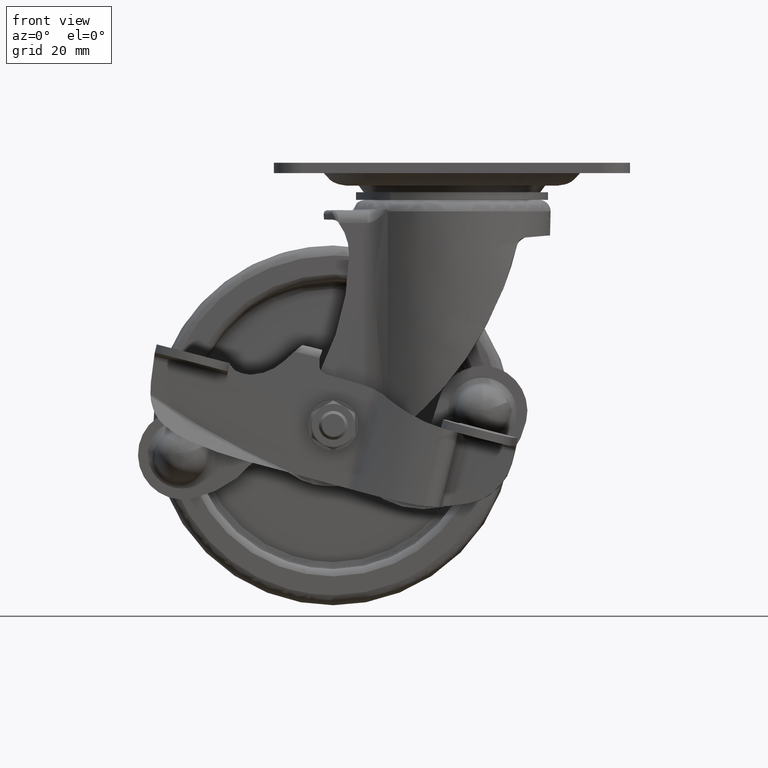
[diagram: clean part render]
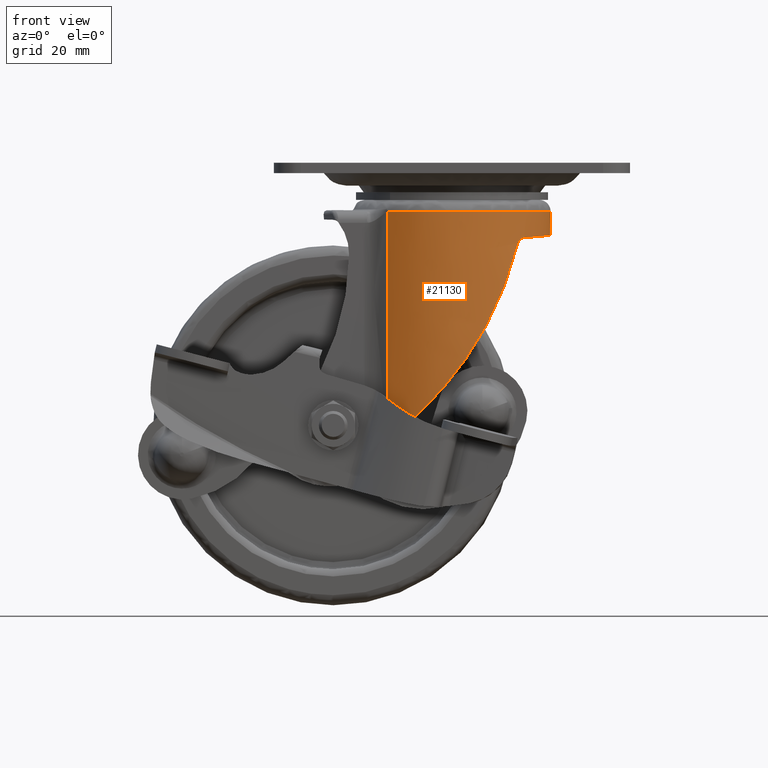
[diagram: same view with one face highlighted and labeled with its STEP entity id]
A machine part, front view. The second image highlights one B-rep face of the part: STEP entity #21130.
In plain terms, the highlighted face is a freeform B-spline surface patch.
Its self-contained STEP definition (entity closure, byte-faithful):
#17710=CARTESIAN_POINT('',(-17.809410793729349,20.855587073496551,-13.514989000000019));
#17711=VERTEX_POINT('',#17710);
#17712=CARTESIAN_POINT('',(2.256068144123487,27.332046786310588,-13.514988997901430));
#17713=VERTEX_POINT('',#17712);
#17714=CARTESIAN_POINT('',(-17.809410793729349,20.855587073496551,-13.514989000000019));
#17715=CARTESIAN_POINT('',(-16.181062514151090,22.246762484714420,-13.514989000000160));
#17716=CARTESIAN_POINT('',(-13.067750404773390,24.328609112778590,-13.514988999886590));
#17717=CARTESIAN_POINT('',(-8.141863590517751,26.331576506660902,-13.514988999452740));
#17718=CARTESIAN_POINT('',(-3.166226682089326,27.410586725977559,-13.514988998828651));
#17719=CARTESIAN_POINT('',(0.346340687700639,27.489996866062761,-13.514988998253600));
#17720=CARTESIAN_POINT('',(2.256068144123487,27.332046786310588,-13.514988997901430));
#17721=B_SPLINE_CURVE_WITH_KNOTS('',3,(#17714,#17715,#17716,#17717,#17718,#17719,#17720),.UNSPECIFIED.,.F.,.U.,(4,1,1,1,4),(0.000000041187111,6.425009773593368,11.159193622315870,15.893420190783679,21.642109627201950),.UNSPECIFIED.);
#17722=EDGE_CURVE('',#17711,#17713,#17721,.T.);
#17773=CARTESIAN_POINT('',(-17.809410793725050,-20.855587073500249,-13.514989000000019));
#17774=VERTEX_POINT('',#17773);
#17802=CARTESIAN_POINT('',(27.416338891094501,-0.689192867533526,-13.514988997873211));
#17803=VERTEX_POINT('',#17802);
#17804=CARTESIAN_POINT('',(27.416338891094501,-0.689192867533526,-13.514988997873211));
#17805=CARTESIAN_POINT('',(27.362258257663221,-2.860237573532439,-13.514988998045020));
#17806=CARTESIAN_POINT('',(26.803832049654488,-6.708013903065655,-13.514988998355120));
#17807=CARTESIAN_POINT('',(24.978329027474562,-11.630994355732810,-13.514988998764910));
#17808=CARTESIAN_POINT('',(22.483732541432332,-15.965343627836550,-13.514988999136330));
#17809=CARTESIAN_POINT('',(19.086485311150639,-19.977686969704401,-13.514988999493090));
#17810=CARTESIAN_POINT('',(14.987450509932501,-23.139090205523470,-13.514988999790880));
#17811=CARTESIAN_POINT('',(11.127261970618621,-25.153451567642769,-13.514988999995589));
#17812=CARTESIAN_POINT('',(6.962419208093797,-26.669707520689290,-13.514989000164530));
#17813=CARTESIAN_POINT('',(2.263048676686910,-27.512634308732270,-13.514989000286940));
#17814=CARTESIAN_POINT('',(-2.419263276025673,-27.416394096781339,-13.514989000334660));
#17815=CARTESIAN_POINT('',(-6.392420884691139,-26.752034314798252,-13.514989000329891));
#17816=CARTESIAN_POINT('',(-10.402376109485440,-25.522217369357861,-13.514989000279851));
#17817=CARTESIAN_POINT('',(-14.366560107942590,-23.512353567095349,-13.514989000168789));
#17818=CARTESIAN_POINT('',(-16.830772490804279,-21.691320733302181,-13.514989000054280));
#17819=CARTESIAN_POINT('',(-17.809410793725050,-20.855587073500249,-13.514989000000019));
#17820=B_SPLINE_CURVE_WITH_KNOTS('',3,(#17804,#17805,#17806,#17807,#17808,#17809,#17810,#17811,#17812,#17813,#17814,#17815,#17816,#17817,#17818,#17819),.UNSPECIFIED.,.F.,.U.,(4,1,1,1,1,1,1,1,1,1,1,1,1,4),(0.000000445229588,6.515058542583354,11.582493206983781,15.684651587746540,21.475931842472459,27.267234604979858,31.127851830378599,34.506182734231572,40.538722366357703,45.364821359683702,48.501780482406772,52.603965430931318,57.912564213391143,61.773375144094842),.UNSPECIFIED.);
#17821=EDGE_CURVE('',#17803,#17774,#17820,.T.);
#17917=CARTESIAN_POINT('',(2.256068144123487,27.332046786310588,-13.514988997901430));
#17918=CARTESIAN_POINT('',(4.087544215698467,27.181162879904580,-13.514988998255429));
#17919=CARTESIAN_POINT('',(6.865087686045921,26.667003596386149,-13.514988998738570));
#17920=CARTESIAN_POINT('',(10.850017832122990,25.272678393950670,-13.514988999307850));
#17921=CARTESIAN_POINT('',(14.238958491251600,23.565490989685010,-13.514988999693729));
#17922=CARTESIAN_POINT('',(17.855765918257340,20.981331613136920,-13.514988999961860));
#17923=CARTESIAN_POINT('',(21.077112709466022,17.756683923506241,-13.514989000026681));
#17924=CARTESIAN_POINT('',(23.387303699644232,14.474933294839509,-13.514988999890450));
#17925=CARTESIAN_POINT('',(25.197779513665651,11.025245399250389,-13.514988999618231));
#17926=CARTESIAN_POINT('',(26.962091419476550,6.242130181663877,-13.514988999084990));
#17927=CARTESIAN_POINT('',(27.485412729764839,2.012528817371611,-13.514988998396960));
#17928=CARTESIAN_POINT('',(27.416338891094501,-0.689192867533526,-13.514988997873211));
#17929=B_SPLINE_CURVE_WITH_KNOTS('',3,(#17917,#17918,#17919,#17920,#17921,#17922,#17923,#17924,#17925,#17926,#17927,#17928),.UNSPECIFIED.,.F.,.U.,(4,1,1,1,1,1,1,1,1,4),(0.000000142469268,5.512993311559292,8.431695133595873,12.647592320291430,16.863479319849869,21.727786342800648,26.268030616539889,28.862399098041521,33.402565072748963,41.509976035594512),.UNSPECIFIED.);
#17930=EDGE_CURVE('',#17713,#17803,#17929,.T.);
#19168=CARTESIAN_POINT('',(-17.846202660859849,20.824112840347350,-13.547320495268080));
#19169=VERTEX_POINT('',#19168);
#19170=CARTESIAN_POINT('',(-17.846202660859849,20.824112840347350,-13.547320495268080));
#19171=CARTESIAN_POINT('',(-17.809410793729349,20.855587073496551,-13.514989000000019));
#19172=QUASI_UNIFORM_CURVE('',1,(#19170,#19171),.UNSPECIFIED.,.F.,.U.);
#19173=EDGE_CURVE('',#19169,#17711,#19172,.T.);
#19603=CARTESIAN_POINT('',(-17.846202660859849,-20.824112840347350,-13.547320495268080));
#19604=VERTEX_POINT('',#19603);
#19642=CARTESIAN_POINT('',(-17.809410793725050,-20.855587073500249,-13.514989000000019));
#19643=CARTESIAN_POINT('',(-17.846202660859849,-20.824112840347350,-13.547320495268080));
#19644=QUASI_UNIFORM_CURVE('',1,(#19642,#19643),.UNSPECIFIED.,.F.,.U.);
#19645=EDGE_CURVE('',#17774,#19604,#19644,.T.);
#20300=CARTESIAN_POINT('',(-17.846202660859799,20.824112840347350,-76.803480371900108));
#20301=VERTEX_POINT('',#20300);
#20302=CARTESIAN_POINT('',(-17.846202660859799,20.824112840347350,-76.803480371900108));
#20303=CARTESIAN_POINT('',(-17.846202660859849,20.824112840347350,-13.547320495268080));
#20304=QUASI_UNIFORM_CURVE('',1,(#20302,#20303),.UNSPECIFIED.,.F.,.U.);
#20305=EDGE_CURVE('',#20301,#19169,#20304,.T.);
#20332=CARTESIAN_POINT('',(-17.846202660859849,-20.824112840347350,-76.803480371900108));
#20333=VERTEX_POINT('',#20332);
#20334=CARTESIAN_POINT('',(-17.846202660859849,-20.824112840347350,-13.547320495268080));
#20335=CARTESIAN_POINT('',(-17.846202660859849,-20.824112840347350,-76.803480371900108));
#20336=QUASI_UNIFORM_CURVE('',1,(#20334,#20335),.UNSPECIFIED.,.F.,.U.);
#20337=EDGE_CURVE('',#19604,#20333,#20336,.T.);
#20549=CARTESIAN_POINT('',(18.218237527660801,20.499425513553600,-22.550122951543550));
#20550=VERTEX_POINT('',#20549);
#20551=CARTESIAN_POINT('',(-17.846202660859799,20.824112840347350,-76.803480371900108));
#20552=CARTESIAN_POINT('',(-17.499274141282331,21.121431735308299,-76.547995395013587));
#20553=CARTESIAN_POINT('',(-17.147941598564341,21.407471329844942,-76.285633717089070));
#20554=CARTESIAN_POINT('',(-16.132866213155008,22.193619586237251,-75.516250786476448));
#20555=CARTESIAN_POINT('',(-15.459352316206070,22.667142128612319,-74.992201255253306));
#20556=CARTESIAN_POINT('',(-14.603067683565071,23.214683256564690,-74.306155545968849));
#20557=CARTESIAN_POINT('',(-14.431124240889361,23.321940264616419,-74.167420682210818));
#20558=CARTESIAN_POINT('',(-14.087490623986840,23.531104054295010,-73.888159347732852));
#20559=CARTESIAN_POINT('',(-13.915597003169379,23.633142688656349,-73.747470538788932));
#20560=CARTESIAN_POINT('',(-13.399770252729301,23.931859005839769,-73.322240444555348));
#20561=CARTESIAN_POINT('',(-13.055692544603589,24.121141598944430,-73.034536076610678));
#20562=CARTESIAN_POINT('',(-12.023504080352289,24.661067695302489,-72.158833086877777));
#20563=CARTESIAN_POINT('',(-11.335452967758179,24.983841847963699,-71.558251667962466));
#20564=CARTESIAN_POINT('',(-9.962389512339543,25.562387844621650,-70.323665558663734));
#20565=CARTESIAN_POINT('',(-9.277371663200638,25.818141976381131,-69.689658945723266));
#20566=CARTESIAN_POINT('',(-7.912834551112366,26.268482294905461,-68.388147904290932));
#20567=CARTESIAN_POINT('',(-7.233311548883998,26.463056798000149,-67.720642324951541));
#20568=CARTESIAN_POINT('',(-6.388707738955641,26.671044925950241,-66.865177949455457));
#20569=CARTESIAN_POINT('',(-6.220026430843379,26.710878947901399,-66.693030604685646));
#20570=CARTESIAN_POINT('',(-5.883174925941185,26.787087272976638,-66.346622005062713));
#20571=CARTESIAN_POINT('',(-5.714997491031681,26.823459301244490,-66.172350116272696));
#20572=CARTESIAN_POINT('',(-5.213057161077494,26.927138318716061,-65.648230405210754));
#20573=CARTESIAN_POINT('',(-4.881279129563636,26.989152958383212,-65.296457793049044));
#20574=CARTESIAN_POINT('',(-3.894473681134695,27.155260211253509,-64.234090477251698));
#20575=CARTESIAN_POINT('',(-3.247973250698395,27.239453665132981,-63.516448021708392));
#20576=CARTESIAN_POINT('',(-1.342496695311521,27.421821401977951,-61.335495605275163));
#20577=CARTESIAN_POINT('',(-0.117517192353360,27.450131687863870,-59.844186824336539));
#20578=CARTESIAN_POINT('',(2.241564612659198,27.358709721995989,-56.787134320160561));
#20579=CARTESIAN_POINT('',(3.375669281817199,27.238782726746809,-55.221390435551193));
#20580=CARTESIAN_POINT('',(4.599786899427679,27.036849613132851,-53.417724313674903));
#20581=CARTESIAN_POINT('',(4.735080592881124,27.013477908442351,-53.216730255349049));
#20582=CARTESIAN_POINT('',(5.004225943392333,26.964916236215458,-52.813566621500058));
#20583=CARTESIAN_POINT('',(5.138145585606142,26.939712733213049,-52.611293146025012));
#20584=CARTESIAN_POINT('',(5.537201537092662,26.861556008725739,-52.003522362085562));
#20585=CARTESIAN_POINT('',(5.799489303414649,26.806091547136930,-51.597305592223478));
#20586=CARTESIAN_POINT('',(6.575325825574135,26.630371133464049,-50.375490229243873));
#20587=CARTESIAN_POINT('',(7.077854183553438,26.500800927659320,-49.556726847343597));
#20588=CARTESIAN_POINT('',(8.542875397278900,26.080302164234521,-47.087324869607947));
#20589=CARTESIAN_POINT('',(9.462883679825231,25.757693407021350,-45.423588522407009));
#20590=CARTESIAN_POINT('',(11.195475287706749,25.053269612493992,-42.058561333532879));
#20591=CARTESIAN_POINT('',(12.008041545570050,24.671361483284770,-40.357282288096087));
#20592=CARTESIAN_POINT('',(13.529273710577160,23.871068915963381,-36.913989581632762));
#20593=CARTESIAN_POINT('',(14.237933254496239,23.452610598758358,-35.171988633084801));
#20594=CARTESIAN_POINT('',(15.552881323395169,22.602026464589141,-31.643124326312140));
#20595=CARTESIAN_POINT('',(16.159172310454100,22.169835250745880,-29.856275997792249));
#20596=CARTESIAN_POINT('',(16.852796636866849,21.636646257237821,-27.591246867906371));
#20597=CARTESIAN_POINT('',(16.988337014127300,21.530341498079441,-27.136543003764370));
#20598=CARTESIAN_POINT('',(17.252554897187650,21.319206228281530,-26.225299247312119));
#20599=CARTESIAN_POINT('',(17.381281305529871,21.214339226254712,-25.768606171467731));
#20600=CARTESIAN_POINT('',(17.757333130177859,20.902483396099360,-24.395173862722942));
#20601=CARTESIAN_POINT('',(17.994535970708160,20.698233337225830,-23.475084294864772));
#20602=CARTESIAN_POINT('',(18.218237527660801,20.499425513553600,-22.550122951543550));
#20603=B_SPLINE_CURVE_WITH_KNOTS('',3,(#20551,#20552,#20553,#20554,#20555,#20556,#20557,#20558,#20559,#20560,#20561,#20562,#20563,#20564,#20565,#20566,#20567,#20568,#20569,#20570,#20571,#20572,#20573,#20574,#20575,#20576,#20577,#20578,#20579,#20580,#20581,#20582,#20583,#20584,#20585,#20586,#20587,#20588,#20589,#20590,#20591,#20592,#20593,#20594,#20595,#20596,#20597,#20598,#20599,#20600,#20601,#20602),.UNSPECIFIED.,.F.,.U.,(4,2,2,2,2,2,2,2,2,2,2,2,2,2,2,2,2,2,2,2,2,2,2,2,2,4),(0.632209965600658,0.640625000000003,0.656250000000003,0.660156250000003,0.664062500000003,0.671875000000003,0.687500000000003,0.703125000000003,0.718750000000003,0.722656250000003,0.726562500000003,0.734375000000003,0.750000000000003,0.781250000000002,0.812500000000002,0.816406250000002,0.820312500000002,0.828125000000002,0.843750000000002,0.875000000000001,0.906250000000001,0.937500000000001,0.968750000000000,0.976562500000000,0.984375000000000,1.0),.UNSPECIFIED.);
#20604=EDGE_CURVE('',#20301,#20550,#20603,.T.);
#20638=CARTESIAN_POINT('',(18.218237527660801,-20.499425513553600,-22.550122951543550));
#20639=VERTEX_POINT('',#20638);
#20645=CARTESIAN_POINT('',(18.218237527660801,-20.499425513553600,-22.550122951543550));
#20646=CARTESIAN_POINT('',(17.770487389087361,-20.897349756463761,-24.401479731169189));
#20647=CARTESIAN_POINT('',(17.270206002355309,-21.315618520003419,-26.227248144017970));
#20648=CARTESIAN_POINT('',(16.166104061736661,-22.164672064328030,-29.834578945839478));
#20649=CARTESIAN_POINT('',(15.562274888637710,-22.595506066829561,-31.616126775091171));
#20650=CARTESIAN_POINT('',(14.250388048164281,-23.444993806832031,-35.140317722870847));
#20651=CARTESIAN_POINT('',(13.542331324284600,-23.863711777656391,-36.882946713585667));
#20652=CARTESIAN_POINT('',(12.019237837326431,-24.665956282162199,-40.333396602365752));
#20653=CARTESIAN_POINT('',(11.204212023488809,-25.049559624385310,-42.041204531761863));
#20654=CARTESIAN_POINT('',(9.897697152722092,-25.580994134977018,-44.579284350252642));
#20655=CARTESIAN_POINT('',(9.448177681586216,-25.750800229906531,-45.421367219387513));
#20656=CARTESIAN_POINT('',(8.752220127915759,-25.992105629947531,-46.678854485675522));
#20657=CARTESIAN_POINT('',(8.516619808450624,-26.070305032760238,-47.097077238338393));
#20658=CARTESIAN_POINT('',(8.157701919176331,-26.183931570976529,-47.723035641764518));
#20659=CARTESIAN_POINT('',(8.037142919307048,-26.221193802755501,-47.931457151091152));
#20660=CARTESIAN_POINT('',(7.794581940042615,-26.294318076858222,-48.347146688547369));
#20661=CARTESIAN_POINT('',(7.672530165468266,-26.330196132586579,-48.554502060001731));
#20662=CARTESIAN_POINT('',(6.567120398573947,-26.646729555097100,-50.416311609571132));
#20663=CARTESIAN_POINT('',(5.535218987680676,-26.882966672260551,-52.040075369358888));
#20664=CARTESIAN_POINT('',(3.371677958050786,-27.239022267523609,-55.226602310405497));
#20665=CARTESIAN_POINT('',(2.240048152417292,-27.358985904884939,-56.789360562966003));
#20666=CARTESIAN_POINT('',(0.465719796559542,-27.427432530010950,-59.088254017781011));
#20667=CARTESIAN_POINT('',(-0.138550851085662,-27.431603346471690,-59.847006374153828));
#20668=CARTESIAN_POINT('',(-1.064603414497735,-27.406068724717951,-60.973843105856538));
#20669=CARTESIAN_POINT('',(-1.376563123712738,-27.392252146956221,-61.347573148872449));
#20670=CARTESIAN_POINT('',(-1.849477219833700,-27.363022561338401,-61.905346337281820));
#20671=CARTESIAN_POINT('',(-2.008049294316218,-27.351852048262661,-62.090921148366377));
#20672=CARTESIAN_POINT('',(-2.326096762269571,-27.326641694343159,-62.460244666118257));
#20673=CARTESIAN_POINT('',(-2.485618338792106,-27.312600943202948,-62.644049895537187));
#20674=CARTESIAN_POINT('',(-3.285669985563378,-27.235060100660998,-63.558797783356397));
#20675=CARTESIAN_POINT('',(-3.933534530430942,-27.149575033976380,-64.276909205624179));
#20676=CARTESIAN_POINT('',(-5.243701089119761,-26.927230034215750,-65.685815312466588));
#20677=CARTESIAN_POINT('',(-5.906004834062998,-26.790378753142331,-66.376610487815640));
#20678=CARTESIAN_POINT('',(-7.243735026791113,-26.460037598205229,-67.730843779308060));
#20679=CARTESIAN_POINT('',(-7.919163905050292,-26.266560225298189,-68.394282674413176));
#20680=CARTESIAN_POINT('',(-9.281659999395114,-25.816586348312921,-69.693646562023389));
#20681=CARTESIAN_POINT('',(-9.968730820763330,-25.560108862007290,-70.329572830606111));
#20682=CARTESIAN_POINT('',(-10.833754348560230,-25.195151321305030,-71.107094956483934));
#20683=CARTESIAN_POINT('',(-11.007067506635259,-25.119937037909882,-71.261729678073891));
#20684=CARTESIAN_POINT('',(-11.354279895898779,-24.964917382794830,-71.569253149080822));
#20685=CARTESIAN_POINT('',(-11.528362962092530,-24.885022839367991,-71.722301104985817));
#20686=CARTESIAN_POINT('',(-12.049473993634290,-24.639163108416991,-72.177104319506199));
#20687=CARTESIAN_POINT('',(-12.395663562726821,-24.466910477867810,-72.474794844031152));
#20688=CARTESIAN_POINT('',(-13.429904600388790,-23.924349968049299,-73.351534239424652));
#20689=CARTESIAN_POINT('',(-14.113646891458229,-23.528280398381021,-73.914262224600066));
#20690=CARTESIAN_POINT('',(-15.465658099098050,-22.662489418495319,-74.997020669199145));
#20691=CARTESIAN_POINT('',(-16.133936779637800,-22.192786872995541,-75.517054774656344));
#20692=CARTESIAN_POINT('',(-17.121253779813220,-21.428172205232990,-76.265407922050898));
#20693=CARTESIAN_POINT('',(-17.447836222177621,-21.163276877063751,-76.509572496238846));
#20694=CARTESIAN_POINT('',(-17.796454910892141,-20.866669268764369,-76.766826489569638));
#20695=CARTESIAN_POINT('',(-17.821337353096990,-20.845422350421700,-76.785169072544505));
#20696=CARTESIAN_POINT('',(-17.846202660859849,-20.824112840347350,-76.803480371900108));
#20697=B_SPLINE_CURVE_WITH_KNOTS('',3,(#20645,#20646,#20647,#20648,#20649,#20650,#20651,#20652,#20653,#20654,#20655,#20656,#20657,#20658,#20659,#20660,#20661,#20662,#20663,#20664,#20665,#20666,#20667,#20668,#20669,#20670,#20671,#20672,#20673,#20674,#20675,#20676,#20677,#20678,#20679,#20680,#20681,#20682,#20683,#20684,#20685,#20686,#20687,#20688,#20689,#20690,#20691,#20692,#20693,#20694,#20695,#20696),.UNSPECIFIED.,.F.,.U.,(4,2,2,2,2,2,2,2,2,2,2,2,2,2,2,2,2,2,2,2,2,2,2,2,2,4),(0.0,0.031250000000000,0.062500000000000,0.093750000000000,0.125000000000000,0.140625000000000,0.148437500000000,0.152343750000000,0.156250000000000,0.187500000000000,0.218750000000001,0.234375000000001,0.242187500000001,0.246093750000001,0.250000000000001,0.265625000000001,0.281250000000001,0.296875000000001,0.312500000000001,0.316406250000001,0.320312500000001,0.328125000000001,0.343750000000001,0.359375000000001,0.367187500000001,0.367788411107174),.UNSPECIFIED.);
#20698=EDGE_CURVE('',#20639,#20333,#20697,.T.);
#20730=CARTESIAN_POINT('',(20.251640745052299,18.493287218159349,-20.799690335686151));
#20731=VERTEX_POINT('',#20730);
#20739=CARTESIAN_POINT('',(20.251640745052299,18.493287218159349,-20.799690335686151));
#20740=CARTESIAN_POINT('',(20.051457648883240,18.712503850606780,-20.817352670176991));
#20741=CARTESIAN_POINT('',(19.851762030636440,18.924029185573850,-20.860939210974550));
#20742=CARTESIAN_POINT('',(19.554545553053231,19.229418895222320,-20.971230353685769));
#20743=CARTESIAN_POINT('',(19.455873501560369,19.329220280260831,-21.015555384535801));
#20744=CARTESIAN_POINT('',(19.308852462281539,19.475718932243190,-21.095236527322431));
#20745=CARTESIAN_POINT('',(19.259837306789830,19.524186674206049,-21.124124262384068));
#20746=CARTESIAN_POINT('',(19.163315125276998,19.618933502680200,-21.186066289971858));
#20747=CARTESIAN_POINT('',(19.115791571863490,19.665232334046760,-21.219108070183690));
#20748=CARTESIAN_POINT('',(18.975641657802861,19.800821936437831,-21.324782868492630));
#20749=CARTESIAN_POINT('',(18.885406852131240,19.886831117094001,-21.403902736792340));
#20750=CARTESIAN_POINT('',(18.756095925049230,20.008573046645239,-21.537825802908319));
#20751=CARTESIAN_POINT('',(18.713847770448020,20.048082550997488,-21.585217964171012));
#20752=CARTESIAN_POINT('',(18.632458396351598,20.123747326363912,-21.684768005696331));
#20753=CARTESIAN_POINT('',(18.593498018839860,20.159736971014262,-21.736672179396709));
#20754=CARTESIAN_POINT('',(18.482205448278300,20.262005331061282,-21.899110312445309));
#20755=CARTESIAN_POINT('',(18.415383779188780,20.322654828720690,-22.016280666847919));
#20756=CARTESIAN_POINT('',(18.328819591386551,20.400649643870139,-22.207936823569771));
#20757=CARTESIAN_POINT('',(18.302502736310370,20.424250193309991,-22.274028814790100));
#20758=CARTESIAN_POINT('',(18.255890259338290,20.465924684962779,-22.409340996175018));
#20759=CARTESIAN_POINT('',(18.235492299885660,20.484090862410788,-22.478777938360139));
#20760=CARTESIAN_POINT('',(18.218237527660801,20.499425513553600,-22.550122951543550));
#20761=B_SPLINE_CURVE_WITH_KNOTS('',3,(#20739,#20740,#20741,#20742,#20743,#20744,#20745,#20746,#20747,#20748,#20749,#20750,#20751,#20752,#20753,#20754,#20755,#20756,#20757,#20758,#20759,#20760),.UNSPECIFIED.,.F.,.U.,(4,2,2,2,2,2,2,2,2,2,4),(0.0,0.249999999999999,0.374999999999998,0.437499999999997,0.499999999999996,0.624999999999996,0.687499999999996,0.749999999999997,0.875000000000000,0.937500000000000,1.0),.UNSPECIFIED.);
#20762=EDGE_CURVE('',#20731,#20550,#20761,.T.);
#20783=CARTESIAN_POINT('',(20.251640745052299,-18.493287218159349,-20.799690335686151));
#20784=VERTEX_POINT('',#20783);
#20790=CARTESIAN_POINT('',(18.218237527660801,-20.499425513553600,-22.550122951543550));
#20791=CARTESIAN_POINT('',(18.252725804954711,-20.468775111802351,-22.407520860589170));
#20792=CARTESIAN_POINT('',(18.299326283089250,-20.427214807338189,-22.273833455190299));
#20793=CARTESIAN_POINT('',(18.384363723735191,-20.350608124167550,-22.084674334017048));
#20794=CARTESIAN_POINT('',(18.415258602467858,-20.322669672453500,-22.023536520474391));
#20795=CARTESIAN_POINT('',(18.465228192101431,-20.277240432723591,-21.934592556037209));
#20796=CARTESIAN_POINT('',(18.482530923842120,-20.261472096585390,-21.905345696836260));
#20797=CARTESIAN_POINT('',(18.517960831629392,-20.229096062595769,-21.848330447410760));
#20798=CARTESIAN_POINT('',(18.536117988758491,-20.212461280064328,-21.820501982942471));
#20799=CARTESIAN_POINT('',(18.628979447283861,-20.127144040153709,-21.684581630303370));
#20800=CARTESIAN_POINT('',(18.709851811161819,-20.052084904392490,-21.586069711792451));
#20801=CARTESIAN_POINT('',(18.839273461100252,-19.930276218859490,-21.451515536325100));
#20802=CARTESIAN_POINT('',(18.883908772965260,-19.887999329173510,-21.408788261166009));
#20803=CARTESIAN_POINT('',(18.974320231627619,-19.801760012951540,-21.328738493543138));
#20804=CARTESIAN_POINT('',(19.020237356574938,-19.757666542941720,-21.291251089308879));
#20805=CARTESIAN_POINT('',(19.159840539806950,-19.622637457265519,-21.185713519354810));
#20806=CARTESIAN_POINT('',(19.255364254245009,-19.528965514375379,-21.124548011967970));
#20807=CARTESIAN_POINT('',(19.401561452064900,-19.383363191873560,-21.044841887449000));
#20808=CARTESIAN_POINT('',(19.450783199356788,-19.333976497917291,-21.020291662638598));
#20809=CARTESIAN_POINT('',(19.550116366692869,-19.233527090452402,-20.975049162592629));
#20810=CARTESIAN_POINT('',(19.600288692907480,-19.182399814650370,-20.954344630536671));
#20811=CARTESIAN_POINT('',(19.750535195396449,-19.028074061056881,-20.898333532153838));
#20812=CARTESIAN_POINT('',(19.850813933648549,-18.923455261266628,-20.868858646713289));
#20813=CARTESIAN_POINT('',(20.051314056040809,-18.710873242035380,-20.823948407751359));
#20814=CARTESIAN_POINT('',(20.151536817321340,-18.602909091094180,-20.808522595198909));
#20815=CARTESIAN_POINT('',(20.251640745052299,-18.493287218159349,-20.799690335686151));
#20816=B_SPLINE_CURVE_WITH_KNOTS('',3,(#20790,#20791,#20792,#20793,#20794,#20795,#20796,#20797,#20798,#20799,#20800,#20801,#20802,#20803,#20804,#20805,#20806,#20807,#20808,#20809,#20810,#20811,#20812,#20813,#20814,#20815),.UNSPECIFIED.,.F.,.U.,(4,2,2,2,2,2,2,2,2,2,2,2,4),(0.0,0.125000000000012,0.187500000000017,0.218750000000019,0.250000000000020,0.375000000000016,0.437500000000014,0.500000000000012,0.625000000000010,0.687500000000009,0.750000000000008,0.875000000000004,1.0),.UNSPECIFIED.);
#20817=EDGE_CURVE('',#20639,#20784,#20816,.T.);
#20827=CARTESIAN_POINT('',(25.921733000000000,8.955131672773399,-20.299413000000150));
#20828=VERTEX_POINT('',#20827);
#20829=CARTESIAN_POINT('',(25.921733000000000,-8.955131672773620,-20.299413000000150));
#20830=VERTEX_POINT('',#20829);
#20836=CARTESIAN_POINT('',(20.251640745052299,-18.493287218159349,-20.799690335686151));
#20837=CARTESIAN_POINT('',(21.585444565257419,-17.033722500707519,-20.682007625864639));
#20838=CARTESIAN_POINT('',(23.796921593659100,-14.011198477422200,-20.486887020069730));
#20839=CARTESIAN_POINT('',(25.351312716314620,-10.606326005782369,-20.349741694298562));
#20840=CARTESIAN_POINT('',(25.921733000000000,-8.955131672773620,-20.299413000000150));
#20841=B_SPLINE_CURVE_WITH_KNOTS('',3,(#20836,#20837,#20838,#20839,#20840),.UNSPECIFIED.,.F.,.U.,(4,1,4),(0.000000011675340,5.942063243711568,11.185072992502841),.UNSPECIFIED.);
#20842=EDGE_CURVE('',#20784,#20830,#20841,.T.);
#20847=CARTESIAN_POINT('',(25.921733000000000,8.955131672773399,-20.299413000000150));
#20848=CARTESIAN_POINT('',(25.199393629808640,11.046748551403310,-20.363145651839350));
#20849=CARTESIAN_POINT('',(23.553908957609199,14.419625716872980,-20.508328243357461));
#20850=CARTESIAN_POINT('',(21.271387205876831,17.376983713004130,-20.709717188943920));
#20851=CARTESIAN_POINT('',(20.251640745052299,18.493287218159349,-20.799690335686151));
#20852=B_SPLINE_CURVE_WITH_KNOTS('',3,(#20847,#20848,#20849,#20850,#20851),.UNSPECIFIED.,.F.,.U.,(4,1,4),(0.000000011666101,6.641107249204297,11.185044206461081),.UNSPECIFIED.);
#20853=EDGE_CURVE('',#20828,#20731,#20852,.T.);
#21080=CARTESIAN_POINT('',(25.921733000000000,-8.955131672773620,-20.299413000000150));
#21081=CARTESIAN_POINT('',(26.698112890275361,-6.710252491499634,-20.247551977931568));
#21082=CARTESIAN_POINT('',(27.584494129689251,-2.392057777802743,-20.188343029330230));
#21083=CARTESIAN_POINT('',(27.361760556349481,3.722466552071850,-20.203221300788758));
#21084=CARTESIAN_POINT('',(26.480372807481821,7.338753171466054,-20.262096691647589));
#21085=CARTESIAN_POINT('',(25.921733000000000,8.955131672773399,-20.299413000000150));
#21086=B_SPLINE_CURVE_WITH_KNOTS('',3,(#21080,#21081,#21082,#21083,#21084,#21085),.UNSPECIFIED.,.F.,.U.,(4,1,1,4),(0.000000041941899,7.127535644073797,13.114613290356271,18.246420774471019),.UNSPECIFIED.);
#21087=EDGE_CURVE('',#20830,#20828,#21086,.T.);
#21092=CARTESIAN_POINT('',(-18.385198938305908,20.349817812425620,-78.385692656250782));
#21093=CARTESIAN_POINT('',(-18.385198938305908,20.349817812425620,-11.893221406413771));
#21094=CARTESIAN_POINT('',(1.496482991972139,38.312075798494263,-78.385692656250782));
#21095=CARTESIAN_POINT('',(1.496482991972139,38.312075798494263,-11.893221406413772));
#21096=CARTESIAN_POINT('',(19.916503527732772,18.853740006423351,-78.385692656250782));
#21097=CARTESIAN_POINT('',(19.916503527732772,18.853740006423351,-11.893221406413771));
#21098=CARTESIAN_POINT('',(38.336524063493400,-0.604595785647565,-78.385692656250782));
#21099=CARTESIAN_POINT('',(38.336524063493400,-0.604595785647565,-11.893221406413772));
#21100=CARTESIAN_POINT('',(19.312071441727021,-19.472404105031089,-78.385692656250782));
#21101=CARTESIAN_POINT('',(19.312071441727021,-19.472404105031089,-11.893221406413771));
#21102=CARTESIAN_POINT('',(0.287618819960649,-38.340212424414602,-78.385692656250782));
#21103=CARTESIAN_POINT('',(0.287618819960649,-38.340212424414602,-11.893221406413772));
#21104=CARTESIAN_POINT('',(-19.017760031992360,-19.759945049659279,-78.385692656250782));
#21105=CARTESIAN_POINT('',(-19.017760031992360,-19.759945049659279,-11.893221406413771));
#21113=(BOUNDED_SURFACE()B_SPLINE_SURFACE(1,2,((#21092,#21094,#21096,#21098,#21100,#21102,#21104),(#21093,#21095,#21097,#21099,#21101,#21103,#21105)),.UNSPECIFIED.,.F.,.F.,.U.)B_SPLINE_SURFACE_WITH_KNOTS((2,2),(3,2,2,3),(0.0,66.492471249837024),(0.0,44.693308853248780,89.386617706497560,134.079926559746410),.UNSPECIFIED.)GEOMETRIC_REPRESENTATION_ITEM()RATIONAL_B_SPLINE_SURFACE(((1.0,0.715286291066052,1.0,0.715286291066052,1.0,0.715286291066052,1.0),(1.0,0.715286291066052,1.0,0.715286291066052,1.0,0.715286291066052,1.0)))REPRESENTATION_ITEM('')SURFACE());
#21114=ORIENTED_EDGE('',*,*,#20305,.T.);
#21115=ORIENTED_EDGE('',*,*,#19173,.T.);
#21116=ORIENTED_EDGE('',*,*,#17722,.T.);
#21117=ORIENTED_EDGE('',*,*,#17930,.T.);
#21118=ORIENTED_EDGE('',*,*,#17821,.T.);
#21119=ORIENTED_EDGE('',*,*,#19645,.T.);
#21120=ORIENTED_EDGE('',*,*,#20337,.T.);
#21121=ORIENTED_EDGE('',*,*,#20698,.F.);
#21122=ORIENTED_EDGE('',*,*,#20817,.T.);
#21123=ORIENTED_EDGE('',*,*,#20842,.T.);
#21124=ORIENTED_EDGE('',*,*,#21087,.T.);
#21125=ORIENTED_EDGE('',*,*,#20853,.T.);
#21126=ORIENTED_EDGE('',*,*,#20762,.T.);
#21127=ORIENTED_EDGE('',*,*,#20604,.F.);
#21128=EDGE_LOOP('',(#21114,#21115,#21116,#21117,#21118,#21119,#21120,#21121,#21122,#21123,#21124,#21125,#21126,#21127));
#21129=FACE_OUTER_BOUND('',#21128,.T.);
#21130=ADVANCED_FACE('',(#21129),#21113,.T.);